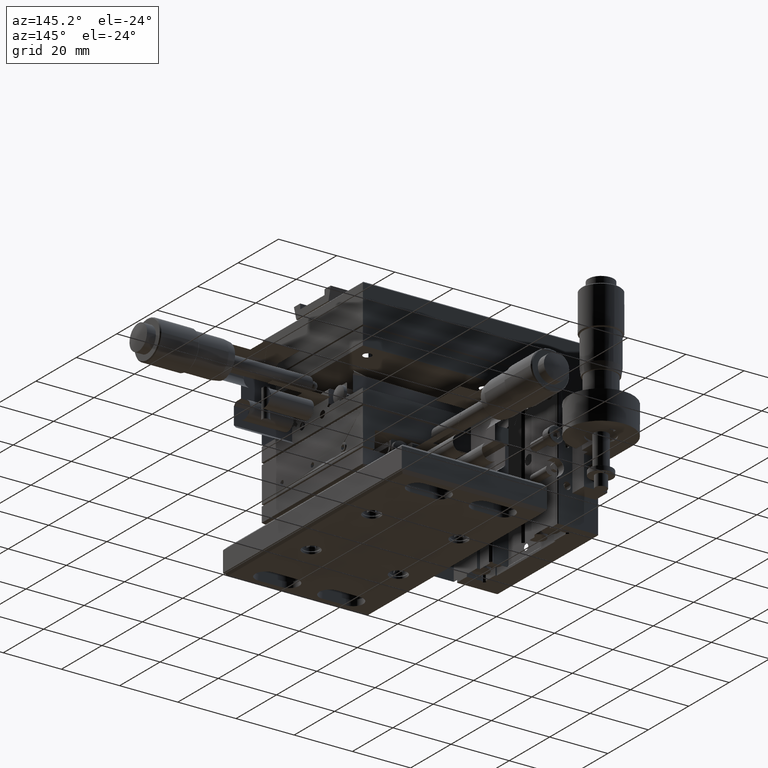
[diagram: clean part render]
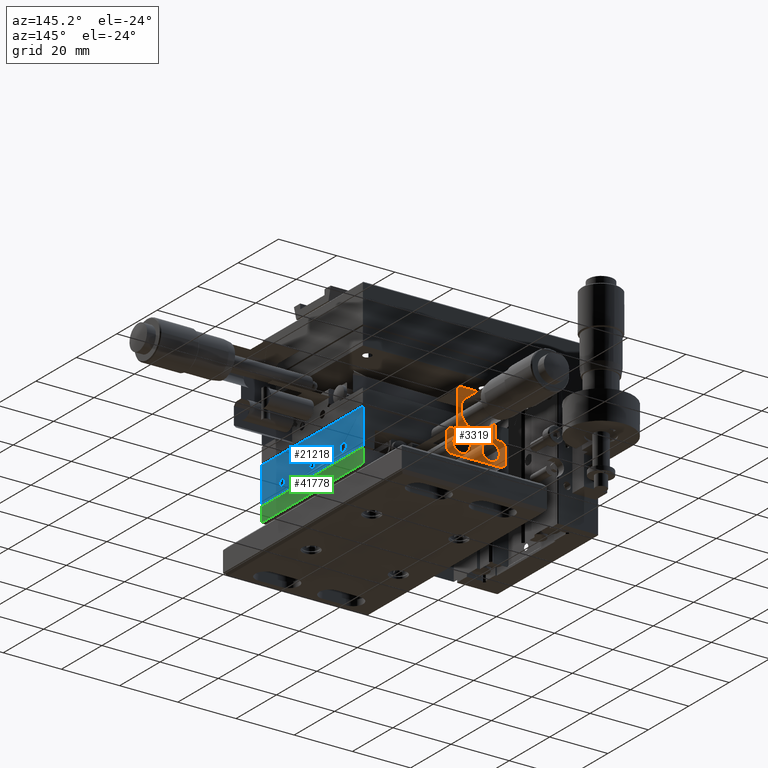
[diagram: same view with three faces highlighted in distinct colors, each labeled with its STEP entity id]
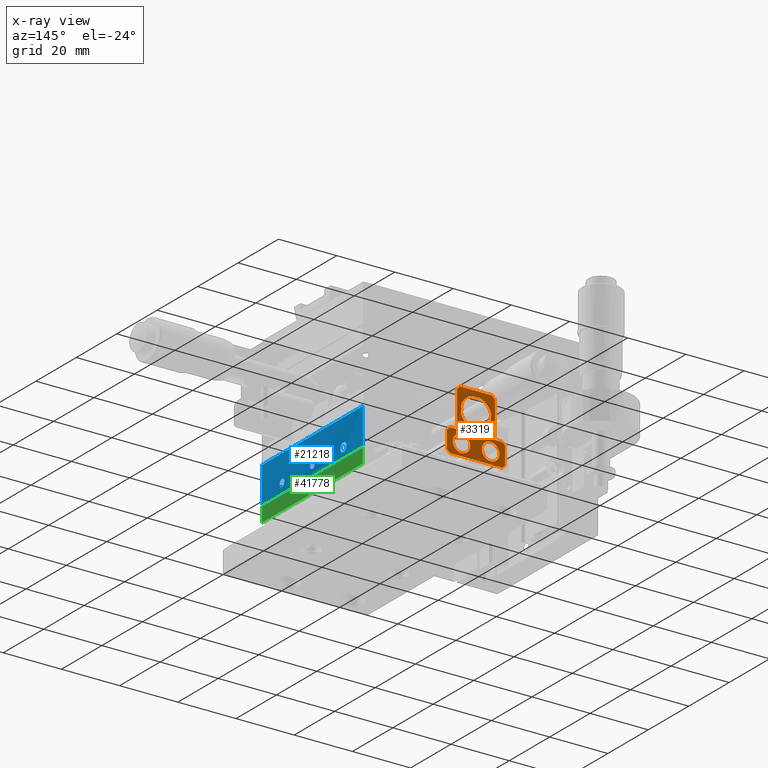
[diagram: x-ray of the same camera — body ghosted, the three highlighted faces saturated]
A machine part, auxiliary view with three faces highlighted in distinct colors.
The next image is the same camera in x-ray (body ghosted, the three faces saturated) — at least one of them is partly hidden behind the body in this view.
Their STEP definitions:

[orange] entity #3319 — the highlighted face is a freeform B-spline surface patch.
#440 = CARTESIAN_POINT ( 'NONE',  ( 12.41923232115949816, 42.50071742813409514, -8.921872138184399503 ) ) ;
#478 = CARTESIAN_POINT ( 'NONE',  ( 18.41923232115950171, 42.50071742813410225, -2.921872138184409273 ) ) ;
#1362 = CARTESIAN_POINT ( 'NONE',  ( 16.91923232115950171, 42.50071742813409514, -4.921872138184400391 ) ) ;
#1472 = FACE_BOUND ( 'NONE', #34066, .T. ) ;
#1560 = CARTESIAN_POINT ( 'NONE',  ( 2.419232321159501709, 42.50071742813410225, -14.92187213818438174 ) ) ;
#1932 = B_SPLINE_CURVE_WITH_KNOTS ( 'NONE', 1,
 ( #9555, #23852 ),
 .UNSPECIFIED., .F., .F.,
 ( 2, 2 ),
 ( 0.000000000000000000, 1.000000000000000000 ),
 .UNSPECIFIED. ) ;
#2353 =( BOUNDED_CURVE ( )  B_SPLINE_CURVE ( 3, ( #34078, #2457, #44663, #41150 ),
 .UNSPECIFIED., .F., .F. ) 
 B_SPLINE_CURVE_WITH_KNOTS ( ( 4, 4 ),
 ( 0.000000000000000000, 1.000000000000000000 ),
 .UNSPECIFIED. ) 
 CURVE ( )  GEOMETRIC_REPRESENTATION_ITEM ( )  RATIONAL_B_SPLINE_CURVE ( ( 1.000000000000000000, 0.3333333333333329818, 0.3333333333333329818, 1.000000000000000000 ) ) 
 REPRESENTATION_ITEM ( '' )  );
#2457 = CARTESIAN_POINT ( 'NONE',  ( 12.41923232115949460, 42.50071742813410225, -14.92187213818438174 ) ) ;
#2835 = CARTESIAN_POINT ( 'NONE',  ( 20.41923232115950171, 42.50071742813409514, -11.92187213818439950 ) ) ;
#3162 = ORIENTED_EDGE ( 'NONE', *, *, #28629, .F. ) ;
#3171 = VERTEX_POINT ( 'NONE', #32158 ) ;
#3319 = ADVANCED_FACE ( 'NONE', ( #1472, #26529, #19751, #41544 ), #6357, .T. ) ;
#3889 = B_SPLINE_CURVE_WITH_KNOTS ( 'NONE', 1,
 ( #2835, #20631 ),
 .UNSPECIFIED., .F., .F.,
 ( 2, 2 ),
 ( 0.000000000000000000, 1.000000000000000000 ),
 .UNSPECIFIED. ) ;
#4510 = EDGE_LOOP ( 'NONE', ( #6305, #7260 ) ) ;
#4530 =( BOUNDED_CURVE ( )  B_SPLINE_CURVE ( 3, ( #41106, #6397, #23273, #15998 ),
 .UNSPECIFIED., .F., .F. ) 
 B_SPLINE_CURVE_WITH_KNOTS ( ( 4, 4 ),
 ( 0.5000000000000000000, 1.000000000000000000 ),
 .UNSPECIFIED. ) 
 CURVE ( )  GEOMETRIC_REPRESENTATION_ITEM ( )  RATIONAL_B_SPLINE_CURVE ( ( 0.4999999999999996114, 0.4999999999999996669, 0.6666666666666665186, 1.000000000000000000 ) ) 
 REPRESENTATION_ITEM ( '' )  );
#4585 = B_SPLINE_CURVE_WITH_KNOTS ( 'NONE', 1,
 ( #18860, #15316 ),
 .UNSPECIFIED., .F., .F.,
 ( 2, 2 ),
 ( -1.000000000000000000, 0.000000000000000000 ),
 .UNSPECIFIED. ) ;
#4631 = VERTEX_POINT ( 'NONE', #12652 ) ;
#4928 =( BOUNDED_CURVE ( )  B_SPLINE_CURVE ( 3, ( #41511, #41047, #40573, #9151 ),
 .UNSPECIFIED., .F., .F. ) 
 B_SPLINE_CURVE_WITH_KNOTS ( ( 4, 4 ),
 ( 0.000000000000000000, 0.5000000000000000000 ),
 .UNSPECIFIED. ) 
 CURVE ( )  GEOMETRIC_REPRESENTATION_ITEM ( )  RATIONAL_B_SPLINE_CURVE ( ( 1.000000000000000000, 0.6666666666666665186, 0.4999999999999997780, 0.4999999999999997780 ) ) 
 REPRESENTATION_ITEM ( '' )  );
#5197 = VERTEX_POINT ( 'NONE', #8285 ) ;
#5520 = CARTESIAN_POINT ( 'NONE',  ( 13.91923232115949460, 42.50071742813409514, -3.671872138184394174 ) ) ;
#5757 = CARTESIAN_POINT ( 'NONE',  ( 15.66923232115949993, 42.50071742813409514, 1.578127861815599831 ) ) ;
#6305 = ORIENTED_EDGE ( 'NONE', *, *, #19005, .F. ) ;
#6357 = B_SPLINE_SURFACE_WITH_KNOTS ( 'NONE', 1, 1, ( 
 ( #8724, #16669 ),
 ( #45760, #9416 ) ),
 .UNSPECIFIED., .F., .F., .F.,
 ( 2, 2 ),
 ( 2, 2 ),
 ( 0.000000000000000000, 1.000000000000000000 ),
 ( 0.000000000000000000, 1.000000000000000000 ),
 .UNSPECIFIED. ) ;
#6397 = CARTESIAN_POINT ( 'NONE',  ( 6.919232321159488386, 42.50071742813410225, 6.828127861815595168 ) ) ;
#6492 = EDGE_CURVE ( 'NONE', #27611, #33409, #15196, .T. ) ;
#6707 =( BOUNDED_CURVE ( )  B_SPLINE_CURVE ( 3, ( #46130, #6956, #26105, #24988 ),
 .UNSPECIFIED., .F., .F. ) 
 B_SPLINE_CURVE_WITH_KNOTS ( ( 4, 4 ),
 ( 0.000000000000000000, 1.000000000000000000 ),
 .UNSPECIFIED. ) 
 CURVE ( )  GEOMETRIC_REPRESENTATION_ITEM ( )  RATIONAL_B_SPLINE_CURVE ( ( 1.000000000000000000, 0.3333333333333329818, 0.3333333333333329818, 1.000000000000000000 ) ) 
 REPRESENTATION_ITEM ( '' )  );
#6749 = EDGE_CURVE ( 'NONE', #3171, #8601, #15194, .T. ) ;
#6815 = CARTESIAN_POINT ( 'NONE',  ( 19.41923232115949816, 42.50071742813409514, -4.921872138184400391 ) ) ;
#6956 = CARTESIAN_POINT ( 'NONE',  ( 8.419232321159483945, 42.50071742813410225, -2.921872138184409273 ) ) ;
#7260 = ORIENTED_EDGE ( 'NONE', *, *, #31943, .F. ) ;
#8197 = CARTESIAN_POINT ( 'NONE',  ( 18.41923232115949816, 42.50071742813409514, -8.921872138184399503 ) ) ;
#8202 = EDGE_CURVE ( 'NONE', #45380, #24694, #2353, .T. ) ;
#8253 = ORIENTED_EDGE ( 'NONE', *, *, #19070, .F. ) ;
#8285 = CARTESIAN_POINT ( 'NONE',  ( 2.419232321159499932, 42.50071742813409514, -8.921872138184399503 ) ) ;
#8355 = VERTEX_POINT ( 'NONE', #29101 ) ;
#8601 = VERTEX_POINT ( 'NONE', #33943 ) ;
#8724 = CARTESIAN_POINT ( 'NONE',  ( 0.4192323211594859433, 42.50071742813409514, 8.578127861815598720 ) ) ;
#9051 = VERTEX_POINT ( 'NONE', #32198 ) ;
#9151 = CARTESIAN_POINT ( 'NONE',  ( 10.41923232115949105, 42.50071742813409514, -3.671872138184394174 ) ) ;
#9416 = CARTESIAN_POINT ( 'NONE',  ( 20.41923232115950171, 42.50071742813409514, -12.92187213818439950 ) ) ;
#9555 = CARTESIAN_POINT ( 'NONE',  ( 19.41923232115949816, 42.50071742813409514, -12.92187213818439950 ) ) ;
#9805 = CARTESIAN_POINT ( 'NONE',  ( 15.91923232115949993, 42.50071742813409514, 8.578127861815598720 ) ) ;
#9920 = ORIENTED_EDGE ( 'NONE', *, *, #8202, .F. ) ;
#9953 = ORIENTED_EDGE ( 'NONE', *, *, #44209, .F. ) ;
#10357 = EDGE_LOOP ( 'NONE', ( #28007, #41288, #27773, #21371, #40708, #9953, #43786, #19994, #43489, #3162, #8253, #35149, #12552, #22231 ) ) ;
#10908 = EDGE_CURVE ( 'NONE', #25865, #11543, #24062, .T. ) ;
#11543 = VERTEX_POINT ( 'NONE', #12971 ) ;
#11839 = EDGE_CURVE ( 'NONE', #33409, #9051, #3889, .T. ) ;
#12552 = ORIENTED_EDGE ( 'NONE', *, *, #40452, .F. ) ;
#12652 = CARTESIAN_POINT ( 'NONE',  ( 15.91923232115949993, 42.50071742813409514, 8.578127861815598720 ) ) ;
#12971 = CARTESIAN_POINT ( 'NONE',  ( 0.4192323211594874977, 42.50071742813409514, -11.92187213818439950 ) ) ;
#13711 = EDGE_CURVE ( 'NONE', #21554, #24706, #42002, .T. ) ;
#13806 = CARTESIAN_POINT ( 'NONE',  ( 16.91923232115950171, 42.50071742813409514, -4.921872138184400391 ) ) ;
#13820 =( BOUNDED_CURVE ( )  B_SPLINE_CURVE ( 3, ( #8197, #478, #22478, #36775 ),
 .UNSPECIFIED., .F., .F. ) 
 B_SPLINE_CURVE_WITH_KNOTS ( ( 4, 4 ),
 ( 0.000000000000000000, 1.000000000000000000 ),
 .UNSPECIFIED. ) 
 CURVE ( )  GEOMETRIC_REPRESENTATION_ITEM ( )  RATIONAL_B_SPLINE_CURVE ( ( 1.000000000000000000, 0.3333333333333329818, 0.3333333333333329818, 1.000000000000000000 ) ) 
 REPRESENTATION_ITEM ( '' )  );
#13865 = VERTEX_POINT ( 'NONE', #32090 ) ;
#14149 = CARTESIAN_POINT ( 'NONE',  ( 1.419232321159500154, 42.50071742813409514, -12.92187213818439950 ) ) ;
#15194 =( BOUNDED_CURVE ( )  B_SPLINE_CURVE ( 3, ( #28132, #34927, #41994, #27447 ),
 .UNSPECIFIED., .F., .F. ) 
 B_SPLINE_CURVE_WITH_KNOTS ( ( 4, 4 ),
 ( 0.000000000000000000, 0.5000000000000000000 ),
 .UNSPECIFIED. ) 
 CURVE ( )  GEOMETRIC_REPRESENTATION_ITEM ( )  RATIONAL_B_SPLINE_CURVE ( ( 1.000000000000000000, 0.6666666666666664076, 0.4999999999999996114, 0.4999999999999996114 ) ) 
 REPRESENTATION_ITEM ( '' )  );
#15196 = B_SPLINE_CURVE_WITH_KNOTS ( 'NONE', 1,
 ( #32677, #18637 ),
 .UNSPECIFIED., .F., .F.,
 ( 2, 2 ),
 ( 0.000000000000000000, 1.000000000000000000 ),
 .UNSPECIFIED. ) ;
#15316 = CARTESIAN_POINT ( 'NONE',  ( 4.919232321159499932, 42.50071742813409514, 8.578127861815589839 ) ) ;
#15585 = VERTEX_POINT ( 'NONE', #42524 ) ;
#15998 = CARTESIAN_POINT ( 'NONE',  ( 5.169232321159490162, 42.50071742813409514, 1.578127861815599831 ) ) ;
#16019 = ORIENTED_EDGE ( 'NONE', *, *, #36879, .F. ) ;
#16669 = CARTESIAN_POINT ( 'NONE',  ( 20.41923232115950171, 42.50071742813409514, 8.578127861815598720 ) ) ;
#16948 = EDGE_CURVE ( 'NONE', #9051, #25865, #1932, .T. ) ;
#17694 = CARTESIAN_POINT ( 'NONE',  ( 1.419232321159490162, 42.50071742813409514, -4.921872138184410161 ) ) ;
#18164 = CARTESIAN_POINT ( 'NONE',  ( 3.919232321159490606, 42.50071742813409514, -4.921872138184410161 ) ) ;
#18231 = EDGE_CURVE ( 'NONE', #24694, #45380, #13820, .T. ) ;
#18637 = CARTESIAN_POINT ( 'NONE',  ( 20.41923232115950171, 42.50071742813409514, -11.92187213818439950 ) ) ;
#18860 = CARTESIAN_POINT ( 'NONE',  ( 3.919232321159485277, 42.50071742813409514, 7.578127861815579180 ) ) ;
#19005 = EDGE_CURVE ( 'NONE', #32010, #5197, #6707, .T. ) ;
#19070 = EDGE_CURVE ( 'NONE', #13865, #15585, #4585, .T. ) ;
#19142 = CARTESIAN_POINT ( 'NONE',  ( 8.419232321159487498, 42.50071742813409514, -8.921872138184399503 ) ) ;
#19751 = FACE_BOUND ( 'NONE', #20735, .T. ) ;
#19935 = CARTESIAN_POINT ( 'NONE',  ( 16.91923232115950171, 42.50071742813409514, 7.578127861815599609 ) ) ;
#19994 = ORIENTED_EDGE ( 'NONE', *, *, #38078, .F. ) ;
#20048 = CARTESIAN_POINT ( 'NONE',  ( 1.419232321159490162, 42.50071742813409514, -4.921872138184410161 ) ) ;
#20081 = EDGE_CURVE ( 'NONE', #28080, #42373, #20091, .T. ) ;
#20091 = B_SPLINE_CURVE_WITH_KNOTS ( 'NONE', 1,
 ( #38788, #31741 ),
 .UNSPECIFIED., .F., .F.,
 ( 2, 2 ),
 ( 0.000000000000000000, 1.000000000000000000 ),
 .UNSPECIFIED. ) ;
#20590 = CARTESIAN_POINT ( 'NONE',  ( 16.91923232115950171, 42.50071742813409514, 7.578127861815599609 ) ) ;
#20631 = CARTESIAN_POINT ( 'NONE',  ( 19.41923232115949816, 42.50071742813409514, -12.92187213818439950 ) ) ;
#20735 = EDGE_LOOP ( 'NONE', ( #32928, #9920 ) ) ;
#21371 = ORIENTED_EDGE ( 'NONE', *, *, #11839, .F. ) ;
#21511 = B_SPLINE_CURVE_WITH_KNOTS ( 'NONE', 1,
 ( #26840, #45371 ),
 .UNSPECIFIED., .F., .F.,
 ( 2, 2 ),
 ( -1.000000000000000000, 0.000000000000000000 ),
 .UNSPECIFIED. ) ;
#21554 = VERTEX_POINT ( 'NONE', #1362 ) ;
#22231 = ORIENTED_EDGE ( 'NONE', *, *, #20081, .F. ) ;
#22478 = CARTESIAN_POINT ( 'NONE',  ( 12.41923232115949460, 42.50071742813410225, -2.921872138184409273 ) ) ;
#22545 = EDGE_CURVE ( 'NONE', #40955, #13865, #21511, .T. ) ;
#23013 = CARTESIAN_POINT ( 'NONE',  ( 19.41923232115949816, 42.50071742813409514, -4.921872138184400391 ) ) ;
#23111 =( BOUNDED_CURVE ( )  B_SPLINE_CURVE ( 3, ( #38089, #5520, #37150, #5757 ),
 .UNSPECIFIED., .F., .F. ) 
 B_SPLINE_CURVE_WITH_KNOTS ( ( 4, 4 ),
 ( 0.5000000000000000000, 1.000000000000000000 ),
 .UNSPECIFIED. ) 
 CURVE ( )  GEOMETRIC_REPRESENTATION_ITEM ( )  RATIONAL_B_SPLINE_CURVE ( ( 0.4999999999999997780, 0.4999999999999997780, 0.6666666666666665186, 1.000000000000000000 ) ) 
 REPRESENTATION_ITEM ( '' )  );
#23273 = CARTESIAN_POINT ( 'NONE',  ( 5.169232321159490162, 42.50071742813409514, 4.203127861815596056 ) ) ;
#23852 = CARTESIAN_POINT ( 'NONE',  ( 1.419232321159500154, 42.50071742813409514, -12.92187213818439950 ) ) ;
#24062 = B_SPLINE_CURVE_WITH_KNOTS ( 'NONE', 1,
 ( #43409, #29085 ),
 .UNSPECIFIED., .F., .F.,
 ( 2, 2 ),
 ( 0.000000000000000000, 1.000000000000000000 ),
 .UNSPECIFIED. ) ;
#24374 = VERTEX_POINT ( 'NONE', #42986 ) ;
#24694 = VERTEX_POINT ( 'NONE', #42471 ) ;
#24706 = VERTEX_POINT ( 'NONE', #35637 ) ;
#24988 = CARTESIAN_POINT ( 'NONE',  ( 2.419232321159499932, 42.50071742813409514, -8.921872138184399503 ) ) ;
#25865 = VERTEX_POINT ( 'NONE', #14149 ) ;
#26105 = CARTESIAN_POINT ( 'NONE',  ( 2.419232321159501709, 42.50071742813410225, -2.921872138184409273 ) ) ;
#26204 = CARTESIAN_POINT ( 'NONE',  ( 0.4192323211594894961, 42.50071742813409514, -5.921872138184410161 ) ) ;
#26529 = FACE_BOUND ( 'NONE', #4510, .T. ) ;
#26840 = CARTESIAN_POINT ( 'NONE',  ( 3.919232321159490606, 42.50071742813409514, -4.921872138184410161 ) ) ;
#26851 = CARTESIAN_POINT ( 'NONE',  ( 2.419232321159499932, 42.50071742813409514, -8.921872138184399503 ) ) ;
#26896 = B_SPLINE_CURVE_WITH_KNOTS ( 'NONE', 1,
 ( #9805, #20590 ),
 .UNSPECIFIED., .F., .F.,
 ( 2, 2 ),
 ( -1.000000000000000000, 0.000000000000000000 ),
 .UNSPECIFIED. ) ;
#27447 = CARTESIAN_POINT ( 'NONE',  ( 10.41923232115949105, 42.50071742813410225, 6.828127861815596944 ) ) ;
#27611 = VERTEX_POINT ( 'NONE', #36605 ) ;
#27773 = ORIENTED_EDGE ( 'NONE', *, *, #16948, .F. ) ;
#28007 = ORIENTED_EDGE ( 'NONE', *, *, #30828, .F. ) ;
#28080 = VERTEX_POINT ( 'NONE', #45447 ) ;
#28132 = CARTESIAN_POINT ( 'NONE',  ( 15.66923232115949993, 42.50071742813409514, 1.578127861815599831 ) ) ;
#28629 = EDGE_CURVE ( 'NONE', #15585, #4631, #33740, .T. ) ;
#29085 = CARTESIAN_POINT ( 'NONE',  ( 0.4192323211594874977, 42.50071742813409514, -11.92187213818439950 ) ) ;
#29101 = CARTESIAN_POINT ( 'NONE',  ( 10.41923232115949816, 42.50071742813409514, -3.421872138184395062 ) ) ;
#29185 = CARTESIAN_POINT ( 'NONE',  ( 16.91923232115950171, 42.50071742813409514, 7.578127861815599609 ) ) ;
#29455 = ORIENTED_EDGE ( 'NONE', *, *, #6749, .F. ) ;
#29630 = CARTESIAN_POINT ( 'NONE',  ( 15.91923232115949993, 42.50071742813409514, 8.578127861815598720 ) ) ;
#29715 = CARTESIAN_POINT ( 'NONE',  ( 0.4192323211594874977, 42.50071742813409514, -11.92187213818439950 ) ) ;
#30353 = CARTESIAN_POINT ( 'NONE',  ( 8.419232321159483945, 42.50071742813410225, -14.92187213818438174 ) ) ;
#30828 = EDGE_CURVE ( 'NONE', #11543, #28080, #42478, .T. ) ;
#31486 = EDGE_CURVE ( 'NONE', #8601, #24374, #4530, .T. ) ;
#31741 = CARTESIAN_POINT ( 'NONE',  ( 1.419232321159490162, 42.50071742813409514, -4.921872138184410161 ) ) ;
#31943 = EDGE_CURVE ( 'NONE', #5197, #32010, #41073, .T. ) ;
#32010 = VERTEX_POINT ( 'NONE', #42083 ) ;
#32090 = CARTESIAN_POINT ( 'NONE',  ( 3.919232321159485277, 42.50071742813409514, 7.578127861815579180 ) ) ;
#32158 = CARTESIAN_POINT ( 'NONE',  ( 15.41923232431030044, 42.50071742813409514, 1.578155239988054959 ) ) ;
#32198 = CARTESIAN_POINT ( 'NONE',  ( 19.41923232115949816, 42.50071742813409514, -12.92187213818439950 ) ) ;
#32478 = B_SPLINE_CURVE_WITH_KNOTS ( 'NONE', 1,
 ( #23013, #41078 ),
 .UNSPECIFIED., .F., .F.,
 ( 2, 2 ),
 ( 0.000000000000000000, 1.000000000000000000 ),
 .UNSPECIFIED. ) ;
#32677 = CARTESIAN_POINT ( 'NONE',  ( 20.41923232115950171, 42.50071742813409514, -5.921872138184389733 ) ) ;
#32840 = ORIENTED_EDGE ( 'NONE', *, *, #31486, .F. ) ;
#32928 = ORIENTED_EDGE ( 'NONE', *, *, #18231, .F. ) ;
#33409 = VERTEX_POINT ( 'NONE', #46323 ) ;
#33607 = CARTESIAN_POINT ( 'NONE',  ( 4.919232321159499932, 42.50071742813409514, 8.578127861815589839 ) ) ;
#33740 = B_SPLINE_CURVE_WITH_KNOTS ( 'NONE', 1,
 ( #33607, #29630 ),
 .UNSPECIFIED., .F., .F.,
 ( 2, 2 ),
 ( -1.000000000000000000, 0.000000000000000000 ),
 .UNSPECIFIED. ) ;
#33943 = CARTESIAN_POINT ( 'NONE',  ( 10.41923232115949816, 42.50071742813409514, 6.578127861815599609 ) ) ;
#34066 = EDGE_LOOP ( 'NONE', ( #43263, #16019, #32840, #29455 ) ) ;
#34078 = CARTESIAN_POINT ( 'NONE',  ( 12.41923232115949816, 42.50071742813409514, -8.921872138184399503 ) ) ;
#34548 = B_SPLINE_CURVE_WITH_KNOTS ( 'NONE', 1,
 ( #17694, #18164 ),
 .UNSPECIFIED., .F., .F.,
 ( 2, 2 ),
 ( 0.000000000000000000, 1.000000000000000000 ),
 .UNSPECIFIED. ) ;
#34927 = CARTESIAN_POINT ( 'NONE',  ( 15.66923232115949638, 42.50071742813409514, 4.203127861815597832 ) ) ;
#35149 = ORIENTED_EDGE ( 'NONE', *, *, #22545, .F. ) ;
#35277 = VERTEX_POINT ( 'NONE', #29185 ) ;
#35444 = EDGE_CURVE ( 'NONE', #8355, #3171, #23111, .T. ) ;
#35637 = CARTESIAN_POINT ( 'NONE',  ( 19.41923232115949816, 42.50071742813409514, -4.921872138184400391 ) ) ;
#36273 = CARTESIAN_POINT ( 'NONE',  ( 3.919232321159490606, 42.50071742813409514, -4.921872138184410161 ) ) ;
#36605 = CARTESIAN_POINT ( 'NONE',  ( 20.41923232115950171, 42.50071742813409514, -5.921872138184389733 ) ) ;
#36775 = CARTESIAN_POINT ( 'NONE',  ( 12.41923232115949816, 42.50071742813409514, -8.921872138184399503 ) ) ;
#36879 = EDGE_CURVE ( 'NONE', #24374, #8355, #4928, .T. ) ;
#37150 = CARTESIAN_POINT ( 'NONE',  ( 15.66923232115949638, 42.50071742813410225, -1.046872138184396617 ) ) ;
#38078 = EDGE_CURVE ( 'NONE', #35277, #21554, #43748, .T. ) ;
#38089 = CARTESIAN_POINT ( 'NONE',  ( 10.41923232115949105, 42.50071742813409514, -3.671872138184394174 ) ) ;
#38454 = CARTESIAN_POINT ( 'NONE',  ( 16.91923232115950171, 42.50071742813409514, -4.921872138184400391 ) ) ;
#38788 = CARTESIAN_POINT ( 'NONE',  ( 0.4192323211594894961, 42.50071742813409514, -5.921872138184410161 ) ) ;
#40452 = EDGE_CURVE ( 'NONE', #42373, #40955, #34548, .T. ) ;
#40573 = CARTESIAN_POINT ( 'NONE',  ( 6.919232321159488386, 42.50071742813409514, -3.671872138184394174 ) ) ;
#40708 = ORIENTED_EDGE ( 'NONE', *, *, #6492, .F. ) ;
#40955 = VERTEX_POINT ( 'NONE', #36273 ) ;
#41047 = CARTESIAN_POINT ( 'NONE',  ( 5.169232321159491050, 42.50071742813410225, -1.046872138184396617 ) ) ;
#41073 =( BOUNDED_CURVE ( )  B_SPLINE_CURVE ( 3, ( #26851, #1560, #30353, #19142 ),
 .UNSPECIFIED., .F., .F. ) 
 B_SPLINE_CURVE_WITH_KNOTS ( ( 4, 4 ),
 ( 0.000000000000000000, 1.000000000000000000 ),
 .UNSPECIFIED. ) 
 CURVE ( )  GEOMETRIC_REPRESENTATION_ITEM ( )  RATIONAL_B_SPLINE_CURVE ( ( 1.000000000000000000, 0.3333333333333329818, 0.3333333333333329818, 1.000000000000000000 ) ) 
 REPRESENTATION_ITEM ( '' )  );
#41078 = CARTESIAN_POINT ( 'NONE',  ( 20.41923232115950171, 42.50071742813409514, -5.921872138184389733 ) ) ;
#41106 = CARTESIAN_POINT ( 'NONE',  ( 10.41923232115949105, 42.50071742813410225, 6.828127861815596944 ) ) ;
#41150 = CARTESIAN_POINT ( 'NONE',  ( 18.41923232115949816, 42.50071742813409514, -8.921872138184399503 ) ) ;
#41288 = ORIENTED_EDGE ( 'NONE', *, *, #10908, .F. ) ;
#41511 = CARTESIAN_POINT ( 'NONE',  ( 5.169232321159490162, 42.50071742813409514, 1.578127861815599831 ) ) ;
#41544 = FACE_OUTER_BOUND ( 'NONE', #10357, .T. ) ;
#41994 = CARTESIAN_POINT ( 'NONE',  ( 13.91923232115949638, 42.50071742813410225, 6.828127861815596944 ) ) ;
#42002 = B_SPLINE_CURVE_WITH_KNOTS ( 'NONE', 1,
 ( #38454, #6815 ),
 .UNSPECIFIED., .F., .F.,
 ( 2, 2 ),
 ( 0.000000000000000000, 1.000000000000000000 ),
 .UNSPECIFIED. ) ;
#42083 = CARTESIAN_POINT ( 'NONE',  ( 8.419232321159487498, 42.50071742813409514, -8.921872138184399503 ) ) ;
#42373 = VERTEX_POINT ( 'NONE', #20048 ) ;
#42471 = CARTESIAN_POINT ( 'NONE',  ( 18.41923232115949816, 42.50071742813409514, -8.921872138184399503 ) ) ;
#42478 = B_SPLINE_CURVE_WITH_KNOTS ( 'NONE', 1,
 ( #29715, #26204 ),
 .UNSPECIFIED., .F., .F.,
 ( 2, 2 ),
 ( 0.000000000000000000, 1.000000000000000000 ),
 .UNSPECIFIED. ) ;
#42524 = CARTESIAN_POINT ( 'NONE',  ( 4.919232321159499932, 42.50071742813409514, 8.578127861815589839 ) ) ;
#42986 = CARTESIAN_POINT ( 'NONE',  ( 5.419232318008679883, 42.50071742813409514, 1.578100483637455032 ) ) ;
#43263 = ORIENTED_EDGE ( 'NONE', *, *, #35444, .F. ) ;
#43409 = CARTESIAN_POINT ( 'NONE',  ( 1.419232321159500154, 42.50071742813409514, -12.92187213818439950 ) ) ;
#43489 = ORIENTED_EDGE ( 'NONE', *, *, #43684, .F. ) ;
#43684 = EDGE_CURVE ( 'NONE', #4631, #35277, #26896, .T. ) ;
#43748 = B_SPLINE_CURVE_WITH_KNOTS ( 'NONE', 1,
 ( #19935, #13806 ),
 .UNSPECIFIED., .F., .F.,
 ( 2, 2 ),
 ( 0.000000000000000000, 1.000000000000000000 ),
 .UNSPECIFIED. ) ;
#43786 = ORIENTED_EDGE ( 'NONE', *, *, #13711, .F. ) ;
#44209 = EDGE_CURVE ( 'NONE', #24706, #27611, #32478, .T. ) ;
#44663 = CARTESIAN_POINT ( 'NONE',  ( 18.41923232115950171, 42.50071742813410225, -14.92187213818438174 ) ) ;
#45371 = CARTESIAN_POINT ( 'NONE',  ( 3.919232321159485277, 42.50071742813409514, 7.578127861815579180 ) ) ;
#45380 = VERTEX_POINT ( 'NONE', #440 ) ;
#45447 = CARTESIAN_POINT ( 'NONE',  ( 0.4192323211594894961, 42.50071742813409514, -5.921872138184410161 ) ) ;
#45760 = CARTESIAN_POINT ( 'NONE',  ( 0.4192323211594859433, 42.50071742813409514, -12.92187213818439950 ) ) ;
#46130 = CARTESIAN_POINT ( 'NONE',  ( 8.419232321159487498, 42.50071742813409514, -8.921872138184399503 ) ) ;
#46323 = CARTESIAN_POINT ( 'NONE',  ( 20.41923232115950171, 42.50071742813409514, -11.92187213818439950 ) ) ;

[blue] entity #21218 — the highlighted face is a freeform B-spline surface patch.
#53 = CARTESIAN_POINT ( 'NONE',  ( 35.41923232115939868, -2.499249755662264594, -5.461622138184400121 ) ) ;
#72 = CARTESIAN_POINT ( 'NONE',  ( 35.41923232115940579, -3.085584045235376660, -5.304214240981890427 ) ) ;
#137 = EDGE_LOOP ( 'NONE', ( #29615, #28054 ) ) ;
#617 = EDGE_CURVE ( 'NONE', #40695, #33841, #39958, .T. ) ;
#988 = CARTESIAN_POINT ( 'NONE',  ( 35.41923232115939868, -2.499249755662264594, -5.461622138184400121 ) ) ;
#1211 = CARTESIAN_POINT ( 'NONE',  ( 35.41923232115940579, -1.509499829773171209, -3.472732424093927683 ) ) ;
#1353 = CARTESIAN_POINT ( 'NONE',  ( 35.41923232115939868, -17.49923892575510109, -5.461696812016629821 ) ) ;
#1415 = B_SPLINE_SURFACE_WITH_KNOTS ( 'NONE', 1, 1, ( 
 ( #7572, #31704 ),
 ( #35454, #21393 ) ),
 .UNSPECIFIED., .F., .F., .F.,
 ( 2, 2 ),
 ( 2, 2 ),
 ( 0.000000000000000000, 1.000000000000000000 ),
 ( 0.000000000000000000, 1.000000000000000000 ),
 .UNSPECIFIED. ) ;
#1556 = ORIENTED_EDGE ( 'NONE', *, *, #43383, .F. ) ;
#1916 = CARTESIAN_POINT ( 'NONE',  ( 35.41923232115939868, -18.35956771870659665, -5.105273462141319385 ) ) ;
#1976 = CARTESIAN_POINT ( 'NONE',  ( 35.41923232115939157, -3.508077973397833116, -3.509903139563671282 ) ) ;
#2051 = CARTESIAN_POINT ( 'NONE',  ( 35.41923232115940579, -17.25533817754332233, -5.427498177761090226 ) ) ;
#2098 = VERTEX_POINT ( 'NONE', #53 ) ;
#2152 = CARTESIAN_POINT ( 'NONE',  ( 35.41923232115939868, -18.72848451978234863, -4.056376725116704662 ) ) ;
#2278 = B_SPLINE_CURVE_WITH_KNOTS ( 'NONE', 3,
 ( #1353, #44237, #34133, #2051, #37193, #5105, #19402, #16323, #30615, #40264, #44714, #15861, #30158, #26647, #41202, #5336, #22434 ),
 .UNSPECIFIED., .F., .F.,
 ( 4, 2, 2, 1, 2, 2, 2, 2, 4 ),
 ( 0.5442450546873158768, 0.6012144228513993660, 0.6296991069334423319, 0.6581837910154854088, 0.7151531591795712295, 0.7721225273436571612, 0.8290918955077429819, 0.8860612636718288027, 1.000000000000000000 ),
 .UNSPECIFIED. ) ;
#2413 = EDGE_LOOP ( 'NONE', ( #9811, #11813, #8356, #1556 ) ) ;
#2441 = CARTESIAN_POINT ( 'NONE',  ( 35.41923232115939868, -2.915439890476436258, -3.064759485574216846 ) ) ;
#2530 = CARTESIAN_POINT ( 'NONE',  ( 35.41923232115939868, -16.27001499154225073, -4.387367551252130404 ) ) ;
#2537 = VERTEX_POINT ( 'NONE', #4410 ) ;
#2670 = CARTESIAN_POINT ( 'NONE',  ( 35.41923232115939868, -3.728822612769313150, -4.065147394859412344 ) ) ;
#2904 = CARTESIAN_POINT ( 'NONE',  ( 35.41923232115940579, -3.308456473916431495, -5.151383962345643219 ) ) ;
#3060 = B_SPLINE_CURVE_WITH_KNOTS ( 'NONE', 3,
 ( #13867, #42485, #6618, #14098, #27935, #30977, #16920, #38716, #31210, #45545, #17608, #27709, #20892, #9893, #28384, #35188, #28157 ),
 .UNSPECIFIED., .F., .F.,
 ( 4, 2, 2, 1, 2, 2, 2, 2, 4 ),
 ( 0.5442450546920647447, 0.6012144228555563741, 0.6296991069373022443, 0.6581837910190481145, 0.7151531591825398548, 0.7721225273460317062, 0.8290918955095235576, 0.8860612636730154090, 1.000000000000000000 ),
 .UNSPECIFIED. ) ;
#3212 = CARTESIAN_POINT ( 'NONE',  ( 35.41923232115939868, -17.49926058556924957, -2.982047464352345134 ) ) ;
#3332 = ORIENTED_EDGE ( 'NONE', *, *, #617, .T. ) ;
#3360 = CARTESIAN_POINT ( 'NONE',  ( 35.41923232115939868, -2.499249755662264594, -5.461622138184400121 ) ) ;
#3572 = CARTESIAN_POINT ( 'NONE',  ( 35.41923232115939157, -1.329578735750464036, -3.842253182723386562 ) ) ;
#4297 = CARTESIAN_POINT ( 'NONE',  ( 35.41923232115939868, -27.49928257186589775, 4.878127861815590549 ) ) ;
#4410 = CARTESIAN_POINT ( 'NONE',  ( 35.41923232115939868, -18.72848451978234863, -4.056376725116704662 ) ) ;
#4508 = CARTESIAN_POINT ( 'NONE',  ( 35.41923232115939157, -1.372097078507895862, -4.713533017841355033 ) ) ;
#5105 = CARTESIAN_POINT ( 'NONE',  ( 35.41923232115939868, -17.14745528788046158, -5.400608517889533999 ) ) ;
#5336 = CARTESIAN_POINT ( 'NONE',  ( 35.41923232115938447, -16.29976669325620620, -4.527110194036649382 ) ) ;
#6418 = CARTESIAN_POINT ( 'NONE',  ( 35.41923232115939868, -3.248389469781683747, -3.232122212326610011 ) ) ;
#6618 = CARTESIAN_POINT ( 'NONE',  ( 35.41923232115939157, -17.63916641523995921, -2.998144617920589727 ) ) ;
#6642 = CARTESIAN_POINT ( 'NONE',  ( 35.41923232115939868, -2.692794631386103088, -3.003162798664878341 ) ) ;
#6952 = ORIENTED_EDGE ( 'NONE', *, *, #33052, .F. ) ;
#7080 = CARTESIAN_POINT ( 'NONE',  ( 35.41923232115939157, -1.269676898554715327, -4.378596881511284344 ) ) ;
#7104 = FACE_BOUND ( 'NONE', #32942, .T. ) ;
#7284 = B_SPLINE_CURVE_WITH_KNOTS ( 'NONE', 1,
 ( #26275, #30241 ),
 .UNSPECIFIED., .F., .F.,
 ( 2, 2 ),
 ( 0.000000000000000000, 1.000000000000000000 ),
 .UNSPECIFIED. ) ;
#7309 = CARTESIAN_POINT ( 'NONE',  ( 35.41923232115939157, -1.750110041547910278, -5.211622064049269198 ) ) ;
#7572 = CARTESIAN_POINT ( 'NONE',  ( 35.41923232115939868, -27.49928257186589775, 4.878127861815590549 ) ) ;
#7971 = VERTEX_POINT ( 'NONE', #20094 ) ;
#8356 = ORIENTED_EDGE ( 'NONE', *, *, #10271, .T. ) ;
#8658 = ORIENTED_EDGE ( 'NONE', *, *, #45762, .F. ) ;
#8692 = ORIENTED_EDGE ( 'NONE', *, *, #12614, .F. ) ;
#9036 =( BOUNDED_CURVE ( )  B_SPLINE_CURVE ( 3, ( #23159, #37455, #30637, #29947 ),
 .UNSPECIFIED., .F., .F. ) 
 B_SPLINE_CURVE_WITH_KNOTS ( ( 4, 4 ),
 ( 0.000000000000000000, 1.000000000000000000 ),
 .UNSPECIFIED. ) 
 CURVE ( )  GEOMETRIC_REPRESENTATION_ITEM ( )  RATIONAL_B_SPLINE_CURVE ( ( 1.000000000000000000, 0.3333333333333329818, 0.3333333333333329818, 1.000000000000000000 ) ) 
 REPRESENTATION_ITEM ( '' )  );
#9168 = CARTESIAN_POINT ( 'NONE',  ( 35.41923232115941289, -18.02796283385348275, -5.332135815101824328 ) ) ;
#9228 = CARTESIAN_POINT ( 'NONE',  ( 35.41923232115939868, -2.878791167912591487, -3.052170381680336941 ) ) ;
#9634 = B_SPLINE_CURVE_WITH_KNOTS ( 'NONE', 1,
 ( #25306, #39846 ),
 .UNSPECIFIED., .F., .F.,
 ( 2, 2 ),
 ( 0.000000000000000000, 1.000000000000000000 ),
 .UNSPECIFIED. ) ;
#9637 = VERTEX_POINT ( 'NONE', #22426 ) ;
#9811 = ORIENTED_EDGE ( 'NONE', *, *, #38862, .F. ) ;
#9893 = CARTESIAN_POINT ( 'NONE',  ( 35.41923232115939157, -18.55879294305410809, -3.594196013360424935 ) ) ;
#9916 = CARTESIAN_POINT ( 'NONE',  ( 35.41923232115939868, -3.428761579805863935, -3.412665419910006825 ) ) ;
#9991 = CARTESIAN_POINT ( 'NONE',  ( 35.41923232115939868, -16.82957223504769928, -3.159555503247807096 ) ) ;
#10271 = EDGE_CURVE ( 'NONE', #9637, #18870, #33186, .T. ) ;
#10375 = CARTESIAN_POINT ( 'NONE',  ( 35.39275603792469838, -27.49928257186589775, -7.381329456108679743 ) ) ;
#10827 = VERTEX_POINT ( 'NONE', #38941 ) ;
#11078 = CARTESIAN_POINT ( 'NONE',  ( 35.41923232115939868, -27.49928257186589775, 4.878127861815590549 ) ) ;
#11285 = CARTESIAN_POINT ( 'NONE',  ( 35.41923232115939868, -1.298452343521667940, -4.528700711580006200 ) ) ;
#11813 = ORIENTED_EDGE ( 'NONE', *, *, #21302, .F. ) ;
#12437 = CARTESIAN_POINT ( 'NONE',  ( 35.14873232114722867, 12.50075024433770032, -2.721872138201452351 ) ) ;
#12614 = EDGE_CURVE ( 'NONE', #39716, #2098, #26193, .T. ) ;
#12688 = CARTESIAN_POINT ( 'NONE',  ( 35.41923232115939868, -18.14350077917902482, -5.270108233569286149 ) ) ;
#12753 = CARTESIAN_POINT ( 'NONE',  ( 35.41923232115939157, -3.717895345213169556, -4.415577844269524377 ) ) ;
#13068 = CARTESIAN_POINT ( 'NONE',  ( 35.41923232115939157, -17.05421521756434089, -3.025495956773954553 ) ) ;
#13215 = CARTESIAN_POINT ( 'NONE',  ( 35.41923232115939157, -3.581591858436587561, -3.635537848584723175 ) ) ;
#13433 = CARTESIAN_POINT ( 'NONE',  ( 35.41923232115939157, -2.932051383771161035, -3.070859833550049878 ) ) ;
#13508 = CARTESIAN_POINT ( 'NONE',  ( 35.41923232115940579, -16.43616363946720682, -3.536261764915832995 ) ) ;
#13867 = CARTESIAN_POINT ( 'NONE',  ( 35.41923232115939868, -17.49926058556924957, -2.982047464352345134 ) ) ;
#13942 =( BOUNDED_CURVE ( )  B_SPLINE_CURVE ( 3, ( #12437, #30240, #26728, #41052 ),
 .UNSPECIFIED., .F., .F. ) 
 B_SPLINE_CURVE_WITH_KNOTS ( ( 4, 4 ),
 ( 0.000000000000000000, 1.000000000000000000 ),
 .UNSPECIFIED. ) 
 CURVE ( )  GEOMETRIC_REPRESENTATION_ITEM ( )  RATIONAL_B_SPLINE_CURVE ( ( 1.000000000000000000, 0.3333333333333329818, 0.3333333333333329818, 1.000000000000000000 ) ) 
 REPRESENTATION_ITEM ( '' )  );
#14057 = CARTESIAN_POINT ( 'NONE',  ( 35.41923232115940579, -17.83298614932996884, -5.408406115441165340 ) ) ;
#14098 = CARTESIAN_POINT ( 'NONE',  ( 35.41923232115940579, -17.74316133378770388, -3.016246098610943172 ) ) ;
#14290 = CARTESIAN_POINT ( 'NONE',  ( 35.41923232115939868, -17.58300253405616331, -5.451432322182302670 ) ) ;
#14589 = FACE_OUTER_BOUND ( 'NONE', #2413, .T. ) ;
#15861 = CARTESIAN_POINT ( 'NONE',  ( 35.41923232115939868, -16.57504174910957673, -5.036753979256319624 ) ) ;
#16193 = CARTESIAN_POINT ( 'NONE',  ( 35.41923232115939868, -18.25895871893203193, -5.196436641171117365 ) ) ;
#16251 = CARTESIAN_POINT ( 'NONE',  ( 35.41923232115941289, -3.609021686134938012, -3.691993588756271816 ) ) ;
#16323 = CARTESIAN_POINT ( 'NONE',  ( 35.41923232115939868, -16.93512819468997677, -5.317302895241364347 ) ) ;
#16407 = CARTESIAN_POINT ( 'NONE',  ( 35.41923232115939868, -2.007588876011026979, -3.094719461024410645 ) ) ;
#16420 = CARTESIAN_POINT ( 'NONE',  ( 35.41923232115939868, -18.73182019460863756, -4.226032831511269627 ) ) ;
#16748 = EDGE_CURVE ( 'NONE', #44205, #10827, #9036, .T. ) ;
#16920 = CARTESIAN_POINT ( 'NONE',  ( 35.41923232115940579, -17.96076948170861343, -3.077574187510391468 ) ) ;
#16941 = CARTESIAN_POINT ( 'NONE',  ( 35.41923232115940579, -3.728713327108773345, -4.300234509846872832 ) ) ;
#17026 = CARTESIAN_POINT ( 'NONE',  ( 35.41923232115941289, -17.31231431087737960, -2.971872138184415313 ) ) ;
#17483 = CARTESIAN_POINT ( 'NONE',  ( 35.41923232115939868, -16.24634811790008371, -4.204670168873056113 ) ) ;
#17608 = CARTESIAN_POINT ( 'NONE',  ( 35.41923232115941289, -18.37150545336825758, -3.351721702587928231 ) ) ;
#17851 = CARTESIAN_POINT ( 'NONE',  ( 35.41923232115939157, -1.348237449289208412, -3.789070511812899333 ) ) ;
#18340 = CARTESIAN_POINT ( 'NONE',  ( 35.41923232115940579, -2.806261718827710361, -5.422597043569827413 ) ) ;
#18436 = ORIENTED_EDGE ( 'NONE', *, *, #38820, .F. ) ;
#18508 = EDGE_LOOP ( 'NONE', ( #8658, #3332, #26865, #6952 ) ) ;
#18804 = CARTESIAN_POINT ( 'NONE',  ( 35.41923232115939868, -1.312060988354293523, -3.897449598979307428 ) ) ;
#18870 = VERTEX_POINT ( 'NONE', #36529 ) ;
#19026 = CARTESIAN_POINT ( 'NONE',  ( 35.41923232115937736, -2.028482249976656604, -3.085891195681791377 ) ) ;
#19053 = CARTESIAN_POINT ( 'NONE',  ( 35.41923232115939868, 22.50071742813409870, 4.878127861815590549 ) ) ;
#19255 = CARTESIAN_POINT ( 'NONE',  ( 35.41923232115939868, -2.499249755662264594, -2.982122138184414961 ) ) ;
#19402 = CARTESIAN_POINT ( 'NONE',  ( 35.41923232115938447, -17.03773002962876149, -5.366170088857568743 ) ) ;
#19484 = CARTESIAN_POINT ( 'NONE',  ( 35.41923232115941289, -1.969371206247369610, -3.112100207699545873 ) ) ;
#19736 = CARTESIAN_POINT ( 'NONE',  ( 35.41923232115940579, -18.53408824796877497, -4.892241906526908934 ) ) ;
#20019 = CARTESIAN_POINT ( 'NONE',  ( 35.41923232115941289, -2.577520224261151238, -2.992372138184411501 ) ) ;
#20094 = CARTESIAN_POINT ( 'NONE',  ( 35.41923232115939868, 22.50071742813409870, 4.878127861815590549 ) ) ;
#20416 = CARTESIAN_POINT ( 'NONE',  ( 35.41923232115940579, -18.72911552715457262, -4.142129426703442086 ) ) ;
#20698 = CARTESIAN_POINT ( 'NONE',  ( 35.41923232115939868, -3.488999681560611688, -4.971011852268485853 ) ) ;
#20779 = CARTESIAN_POINT ( 'NONE',  ( 35.41923232115939868, -16.30793919993176644, -3.763481560074213750 ) ) ;
#20892 = CARTESIAN_POINT ( 'NONE',  ( 35.41923232115938447, -18.51645926776497220, -3.526783345109279377 ) ) ;
#21218 = ADVANCED_FACE ( 'NONE', ( #39204, #7104, #43446, #14589 ), #1415, .T. ) ;
#21302 = EDGE_CURVE ( 'NONE', #9637, #7971, #39495, .T. ) ;
#21368 = CARTESIAN_POINT ( 'NONE',  ( 35.41923232115939157, -1.280604166111879882, -4.028166432097604499 ) ) ;
#21393 = CARTESIAN_POINT ( 'NONE',  ( 35.41923232115939868, 22.50071742813409870, -7.421872138184400391 ) ) ;
#21597 = CARTESIAN_POINT ( 'NONE',  ( 35.41923232115939868, -1.490421537922332229, -4.933841136798957194 ) ) ;
#21613 = CARTESIAN_POINT ( 'NONE',  ( 35.41923232115938447, -3.029128305073323979, -5.331644068671961278 ) ) ;
#22297 = CARTESIAN_POINT ( 'NONE',  ( 35.41923232115940579, -1.888510771875991701, -5.302346146517465719 ) ) ;
#22426 = CARTESIAN_POINT ( 'NONE',  ( 35.41923232115939868, -27.49928257186589775, 4.878127861815590549 ) ) ;
#22434 = CARTESIAN_POINT ( 'NONE',  ( 35.41923232115939868, -16.27001499154225073, -4.387367551252130404 ) ) ;
#22761 = CARTESIAN_POINT ( 'NONE',  ( 35.41923232115940579, -1.787280757068952397, -3.213043920423551469 ) ) ;
#23159 = CARTESIAN_POINT ( 'NONE',  ( 35.14873232114722157, 12.50075024433770032, -5.721872138167352517 ) ) ;
#23232 = CARTESIAN_POINT ( 'NONE',  ( 35.41923232115940579, -18.65570661147508247, -4.649618478249439413 ) ) ;
#23521 = CARTESIAN_POINT ( 'NONE',  ( 35.41923232115939157, -3.109988739448187989, -3.141398129852987609 ) ) ;
#23609 = CARTESIAN_POINT ( 'NONE',  ( 35.41923232115939868, -16.61807619095351640, -3.331096893358002742 ) ) ;
#24124 = CARTESIAN_POINT ( 'NONE',  ( 35.39275603792469838, 22.50071742813409870, -7.381329456108679743 ) ) ;
#24209 = CARTESIAN_POINT ( 'NONE',  ( 35.41923232115939868, -3.579723750082600020, -4.832611135873375652 ) ) ;
#24664 = CARTESIAN_POINT ( 'NONE',  ( 35.41923232115939868, -3.211218754247568974, -5.230700355950855140 ) ) ;
#25306 = CARTESIAN_POINT ( 'NONE',  ( 35.39275603792469838, 22.50071742813409870, -7.381329456108679743 ) ) ;
#25587 = CARTESIAN_POINT ( 'NONE',  ( 35.41923232115940579, -2.420979287065472274, -5.451372138184408023 ) ) ;
#25712 = VERTEX_POINT ( 'NONE', #24124 ) ;
#26069 = CARTESIAN_POINT ( 'NONE',  ( 35.41923232115939868, -16.27001499154225073, -4.387367551252130404 ) ) ;
#26193 = B_SPLINE_CURVE_WITH_KNOTS ( 'NONE', 3,
 ( #41820, #20019, #6642, #34978, #9228, #2441, #13433, #23521, #6418, #9916, #1976, #13215, #16251, #30775, #27497, #42270, #2670, #16941, #12753, #37830, #45115, #27732, #42050, #24209, #20698, #2904, #24664, #72, #21613, #39196, #39434, #18340, #32146, #3360 ),
 .UNSPECIFIED., .F., .F.,
 ( 4, 1, 1, 2, 2, 2, 1, 1, 2, 2, 2, 1, 1, 2, 2, 2, 1, 1, 2, 2, 4 ),
 ( 0.000000000000000000, 0.06250000000000027756, 0.09375000000000044409, 0.1093750000000003608, 0.1250000000000002776, 0.2500000000000005551, 0.3125000000000005551, 0.3437500000000003886, 0.3593750000000004441, 0.3750000000000004441, 0.5000000000000000000, 0.5625000000000001110, 0.5937499999999998890, 0.6093750000000001110, 0.6250000000000004441, 0.7500000000000014433, 0.8125000000000018874, 0.8437500000000018874, 0.8593750000000014433, 0.8750000000000011102, 1.000000000000000000 ),
 .UNSPECIFIED. ) ;
#26275 = CARTESIAN_POINT ( 'NONE',  ( 35.41923232115939868, 22.50071742813409870, 4.878127861815590549 ) ) ;
#26647 = CARTESIAN_POINT ( 'NONE',  ( 35.41923232115939157, -16.43970656827331212, -4.849548263014339611 ) ) ;
#26728 = CARTESIAN_POINT ( 'NONE',  ( 35.14873232114722157, 9.500750244371822362, -5.721872138167358735 ) ) ;
#26729 = CARTESIAN_POINT ( 'NONE',  ( 35.41923232115939868, -2.192237792490410619, -3.021147232798989002 ) ) ;
#26756 = CARTESIAN_POINT ( 'NONE',  ( 35.28417382891505127, 12.50075024433770032, -5.589518127775120249 ) ) ;
#26865 = ORIENTED_EDGE ( 'NONE', *, *, #44751, .F. ) ;
#26974 = CARTESIAN_POINT ( 'NONE',  ( 35.41923232115941289, -18.08329698597277257, -5.304028765329764639 ) ) ;
#27058 = EDGE_CURVE ( 'NONE', #10827, #44205, #13942, .T. ) ;
#27497 = CARTESIAN_POINT ( 'NONE',  ( 35.41923232115939868, -3.635221634820556602, -3.751081708777554979 ) ) ;
#27709 = CARTESIAN_POINT ( 'NONE',  ( 35.41923232115939868, -18.42345776221961984, -3.406990297124263822 ) ) ;
#27732 = CARTESIAN_POINT ( 'NONE',  ( 35.41923232115939868, -3.656345332388028169, -4.638105352559600547 ) ) ;
#27935 = CARTESIAN_POINT ( 'NONE',  ( 35.41923232115939157, -17.77631106833382901, -3.023383197925656241 ) ) ;
#28054 = ORIENTED_EDGE ( 'NONE', *, *, #16748, .F. ) ;
#28122 = CARTESIAN_POINT ( 'NONE',  ( 35.41923232115939868, -17.93253862274301724, -5.376728747191418911 ) ) ;
#28157 = CARTESIAN_POINT ( 'NONE',  ( 35.41923232115939868, -18.72848451978234863, -4.056376725116704662 ) ) ;
#28263 = CARTESIAN_POINT ( 'NONE',  ( 35.41923232115939868, -16.68724493799136965, -3.266803140426889129 ) ) ;
#28347 = CARTESIAN_POINT ( 'NONE',  ( 35.41923232115940579, -17.66841801612175189, -5.442557982925747773 ) ) ;
#28384 = CARTESIAN_POINT ( 'NONE',  ( 35.41923232115940579, -18.65662048044002930, -3.783126434961599838 ) ) ;
#29093 = CARTESIAN_POINT ( 'NONE',  ( 35.41923232115939868, -1.416907652884679791, -4.808206427779449399 ) ) ;
#29325 = CARTESIAN_POINT ( 'NONE',  ( 35.41923232115939868, -2.066448127553456526, -5.372884442818564921 ) ) ;
#29615 = ORIENTED_EDGE ( 'NONE', *, *, #27058, .F. ) ;
#29947 = CARTESIAN_POINT ( 'NONE',  ( 35.14873232114722157, 12.50075024433770032, -2.721872138201458124 ) ) ;
#30158 = CARTESIAN_POINT ( 'NONE',  ( 35.41923232115939868, -16.48204024356273933, -4.916960931268929968 ) ) ;
#30240 = CARTESIAN_POINT ( 'NONE',  ( 35.14873232114722157, 9.500750244371808151, -2.721872138201451907 ) ) ;
#30241 = CARTESIAN_POINT ( 'NONE',  ( 35.39275603792469838, 22.50071742813409870, -7.381329456108679743 ) ) ;
#30615 = CARTESIAN_POINT ( 'NONE',  ( 35.41923232115940579, -16.80465767993860382, -5.239321068567090123 ) ) ;
#30637 = CARTESIAN_POINT ( 'NONE',  ( 35.14873232114722867, 15.50075024430365644, -2.721872138201459457 ) ) ;
#30775 = CARTESIAN_POINT ( 'NONE',  ( 35.41923232115940579, -3.626402432815492904, -3.730211258525799156 ) ) ;
#30977 = CARTESIAN_POINT ( 'NONE',  ( 35.41923232115939868, -17.85104422345876074, -3.043135758481209763 ) ) ;
#31094 = CARTESIAN_POINT ( 'NONE',  ( 35.41923232115938447, -16.24834904291035542, -4.299723494367383658 ) ) ;
#31210 = CARTESIAN_POINT ( 'NONE',  ( 35.41923232115939868, -18.19384183139520417, -3.204423207805061846 ) ) ;
#31704 = CARTESIAN_POINT ( 'NONE',  ( 35.41923232115939868, 22.50071742813409870, 4.878127861815590549 ) ) ;
#32130 = CARTESIAN_POINT ( 'NONE',  ( 35.41923232115939868, -1.418775761240523181, -3.611133140499667160 ) ) ;
#32146 = CARTESIAN_POINT ( 'NONE',  ( 35.41923232115940579, -2.655404237025594583, -5.451372138184409799 ) ) ;
#32602 = CARTESIAN_POINT ( 'NONE',  ( 35.41923232115939868, -2.119708343413726048, -5.391573894688482582 ) ) ;
#32942 = EDGE_LOOP ( 'NONE', ( #8692, #18436 ) ) ;
#33052 = EDGE_CURVE ( 'NONE', #2537, #39549, #37213, .T. ) ;
#33067 = CARTESIAN_POINT ( 'NONE',  ( 35.41923232115940579, -1.342154178936672881, -3.805638923808755347 ) ) ;
#33186 = B_SPLINE_CURVE_WITH_KNOTS ( 'NONE', 1,
 ( #11078, #10375 ),
 .UNSPECIFIED., .F., .F.,
 ( 2, 2 ),
 ( 0.000000000000000000, 1.000000000000000000 ),
 .UNSPECIFIED. ) ;
#33757 = CARTESIAN_POINT ( 'NONE',  ( 35.41923232115940579, -2.343095274292512631, -2.992372138184411501 ) ) ;
#33772 = CARTESIAN_POINT ( 'NONE',  ( 35.41923232115940579, -18.71988608024477330, -4.392779122633234223 ) ) ;
#33841 = VERTEX_POINT ( 'NONE', #26069 ) ;
#34004 = CARTESIAN_POINT ( 'NONE',  ( 35.41923232115939868, -18.48051399398070771, -4.968174479762351936 ) ) ;
#34133 = CARTESIAN_POINT ( 'NONE',  ( 35.41923232115939868, -17.35933309608107322, -5.445599658450499980 ) ) ;
#34978 = CARTESIAN_POINT ( 'NONE',  ( 35.41923232115939868, -2.823551672095153897, -3.034635558399576549 ) ) ;
#35150 = CARTESIAN_POINT ( 'NONE',  ( 35.41923232115939868, -17.49923892575510109, -5.461696812016629821 ) ) ;
#35188 = CARTESIAN_POINT ( 'NONE',  ( 35.41923232115939868, -18.69873281806728471, -3.916634082324251143 ) ) ;
#35454 = CARTESIAN_POINT ( 'NONE',  ( 35.41923232115939868, -27.49928257186589775, -7.421872138184400391 ) ) ;
#35888 = CARTESIAN_POINT ( 'NONE',  ( 35.41923232115940579, -1.389477825187509286, -4.751750687609560764 ) ) ;
#36127 = CARTESIAN_POINT ( 'NONE',  ( 35.41923232115940579, -2.305704879942085395, -5.440581477703942070 ) ) ;
#36529 = CARTESIAN_POINT ( 'NONE',  ( 35.39275603792469838, -27.49928257186589775, -7.381329456108679743 ) ) ;
#36595 = CARTESIAN_POINT ( 'NONE',  ( 35.41923232115940579, -1.569737931516187235, -5.031078856455274639 ) ) ;
#37193 = CARTESIAN_POINT ( 'NONE',  ( 35.41923232115940579, -17.22218844300668295, -5.420361078447675673 ) ) ;
#37213 = B_SPLINE_CURVE_WITH_KNOTS ( 'NONE', 3,
 ( #2152, #20416, #16420, #33772, #41065, #23232, #44816, #19736, #34004, #1916, #16193, #12688, #26974, #41299, #9168, #28122, #14057, #28347, #14290, #35150 ),
 .UNSPECIFIED., .F., .F.,
 ( 4, 2, 2, 2, 2, 1, 2, 2, 1, 2, 4 ),
 ( 0.000000000000000000, 0.06803063183591369356, 0.1360612636718273871, 0.2040918955077410946, 0.2721225273436547742, 0.3401531591795685094, 0.3741684750975242668, 0.3911761330565033945, 0.4081837910154825777, 0.4762144228513991995, 0.5442450546873158768 ),
 .UNSPECIFIED. ) ;
#37455 = CARTESIAN_POINT ( 'NONE',  ( 35.14873232114722867, 15.50075024430365644, -5.721872138167348965 ) ) ;
#37760 = CARTESIAN_POINT ( 'NONE',  ( 35.41923232115939868, -1.690043037403541115, -3.292360314026366197 ) ) ;
#37830 = CARTESIAN_POINT ( 'NONE',  ( 35.41923232115939868, -3.686438522970639120, -4.546294677388242889 ) ) ;
#37916 = CARTESIAN_POINT ( 'NONE',  ( 35.41923232115939868, -16.26024692832257657, -4.023783740633409600 ) ) ;
#38716 = CARTESIAN_POINT ( 'NONE',  ( 35.41923232115939157, -18.06337131664578877, -3.126441381127132324 ) ) ;
#38820 = EDGE_CURVE ( 'NONE', #2098, #39716, #44744, .T. ) ;
#38862 = EDGE_CURVE ( 'NONE', #7971, #25712, #7284, .T. ) ;
#38941 = CARTESIAN_POINT ( 'NONE',  ( 35.28417382891500154, 12.50075024433770032, -2.854226148593660195 ) ) ;
#39183 = CARTESIAN_POINT ( 'NONE',  ( 35.41923232115940579, -2.083059620849105453, -5.378984790794601345 ) ) ;
#39196 = CARTESIAN_POINT ( 'NONE',  ( 35.41923232115940579, -2.990910635311394117, -5.349024815345899242 ) ) ;
#39204 = FACE_BOUND ( 'NONE', #18508, .T. ) ;
#39418 = CARTESIAN_POINT ( 'NONE',  ( 35.41923232115940579, -2.174947839232133973, -5.409108717969243862 ) ) ;
#39434 = CARTESIAN_POINT ( 'NONE',  ( 35.41923232115939868, -2.970017261348729232, -5.357853080687020153 ) ) ;
#39495 = B_SPLINE_CURVE_WITH_KNOTS ( 'NONE', 1,
 ( #4297, #19053 ),
 .UNSPECIFIED., .F., .F.,
 ( 2, 2 ),
 ( -1.000000000000000000, 0.000000000000000000 ),
 .UNSPECIFIED. ) ;
#39549 = VERTEX_POINT ( 'NONE', #41638 ) ;
#39716 = VERTEX_POINT ( 'NONE', #40592 ) ;
#39846 = CARTESIAN_POINT ( 'NONE',  ( 35.39275603792469838, -27.49928257186589775, -7.381329456108679743 ) ) ;
#39888 = CARTESIAN_POINT ( 'NONE',  ( 35.41923232115940579, -1.269786184216073810, -4.143509766520972804 ) ) ;
#39958 = B_SPLINE_CURVE_WITH_KNOTS ( 'NONE', 3,
 ( #3212, #17026, #13068, #9991, #28263, #23609, #13508, #20779, #37916, #17483, #31094, #2530 ),
 .UNSPECIFIED., .F., .F.,
 ( 4, 1, 2, 2, 1, 2, 4 ),
 ( 0.000000000000000000, 0.1353082291269203097, 0.2029623436903805200, 0.2706164582538407304, 0.4059246873807628719, 0.4735788019442240815, 0.5412329165076853466 ),
 .UNSPECIFIED. ) ;
#40264 = CARTESIAN_POINT ( 'NONE',  ( 35.41923232115939868, -16.74180178782465234, -5.193303903948781830 ) ) ;
#40384 = CARTESIAN_POINT ( 'NONE',  ( 35.41923232115939868, -17.49926058556924957, -2.982047464352345134 ) ) ;
#40592 = CARTESIAN_POINT ( 'NONE',  ( 35.41923232115939868, -2.499249755662264594, -2.982122138184414961 ) ) ;
#40695 = VERTEX_POINT ( 'NONE', #40384 ) ;
#41052 = CARTESIAN_POINT ( 'NONE',  ( 35.14873232114722867, 12.50075024433770032, -5.721872138167358735 ) ) ;
#41065 = CARTESIAN_POINT ( 'NONE',  ( 35.41923232115939868, -18.70630293882424766, -4.472820418740366399 ) ) ;
#41202 = CARTESIAN_POINT ( 'NONE',  ( 35.41923232115939868, -16.34187903088402649, -4.660617841399797179 ) ) ;
#41299 = CARTESIAN_POINT ( 'NONE',  ( 35.41923232115940579, -18.06580225731346445, -5.313265397158798642 ) ) ;
#41638 = CARTESIAN_POINT ( 'NONE',  ( 35.41923232115939868, -17.49923892575510109, -5.461696812016629821 ) ) ;
#41820 = CARTESIAN_POINT ( 'NONE',  ( 35.41923232115939868, -2.499249755662264594, -2.982122138184414961 ) ) ;
#42050 = CARTESIAN_POINT ( 'NONE',  ( 35.41923232115939868, -3.650262062035546151, -4.654673764555369964 ) ) ;
#42270 = CARTESIAN_POINT ( 'NONE',  ( 35.41923232115941289, -3.700047167802366754, -3.915043564782217711 ) ) ;
#42485 = CARTESIAN_POINT ( 'NONE',  ( 35.41923232115939868, -17.56942476675257225, -2.992148124189295988 ) ) ;
#43383 = EDGE_CURVE ( 'NONE', #25712, #18870, #9634, .T. ) ;
#43418 = CARTESIAN_POINT ( 'NONE',  ( 35.41923232115939157, -1.363277876504079611, -4.692662567592079448 ) ) ;
#43446 = FACE_BOUND ( 'NONE', #137, .T. ) ;
#44205 = VERTEX_POINT ( 'NONE', #26756 ) ;
#44237 = CARTESIAN_POINT ( 'NONE',  ( 35.41923232115940579, -17.42907474456728778, -5.451596152180936627 ) ) ;
#44714 = CARTESIAN_POINT ( 'NONE',  ( 35.41923232115939868, -16.62699405796196217, -5.092022573792289286 ) ) ;
#44744 = B_SPLINE_CURVE_WITH_KNOTS ( 'NONE', 3,
 ( #988, #25587, #36127, #39418, #32602, #39183, #29325, #22297, #7309, #36595, #21597, #29093, #35888, #4508, #43418, #11285, #7080, #39888, #21368, #18804, #3572, #33067, #17851, #32130, #1211, #37760, #22761, #44803, #19484, #16407, #19026, #26729, #33757, #19255 ),
 .UNSPECIFIED., .F., .F.,
 ( 4, 1, 1, 2, 2, 2, 1, 1, 2, 2, 2, 1, 1, 2, 2, 2, 1, 1, 2, 2, 4 ),
 ( 0.000000000000000000, 0.06250000000000213718, 0.09375000000000337230, 0.1093750000000037192, 0.1250000000000040801, 0.2500000000000074940, 0.3125000000000091593, 0.3437500000000097700, 0.3593750000000097700, 0.3750000000000098255, 0.5000000000000099920, 0.5625000000000101030, 0.5937500000000098810, 0.6093750000000095479, 0.6250000000000091038, 0.7500000000000063283, 0.8125000000000048850, 0.8437500000000042188, 0.8593750000000038858, 0.8750000000000034417, 1.000000000000000000 ),
 .UNSPECIFIED. ) ;
#44751 = EDGE_CURVE ( 'NONE', #39549, #33841, #2278, .T. ) ;
#44803 = CARTESIAN_POINT ( 'NONE',  ( 35.41923232115940579, -1.912915466083159322, -3.139530035391119966 ) ) ;
#44816 = CARTESIAN_POINT ( 'NONE',  ( 35.41923232115939868, -18.62126367330398224, -4.733502775806745611 ) ) ;
#45115 = CARTESIAN_POINT ( 'NONE',  ( 35.41923232115939157, -3.668920775574338045, -4.601491093644611396 ) ) ;
#45545 = CARTESIAN_POINT ( 'NONE',  ( 35.41923232115939868, -18.25669772350815379, -3.250440372427597868 ) ) ;
#45762 = EDGE_CURVE ( 'NONE', #40695, #2537, #3060, .T. ) ;

[green] entity #41778 — the highlighted face is a freeform B-spline surface patch.
#1063 = EDGE_CURVE ( 'NONE', #38908, #20764, #41546, .T. ) ;
#2716 = B_SPLINE_CURVE_WITH_KNOTS ( 'NONE', 1,
 ( #28063, #18208 ),
 .UNSPECIFIED., .F., .F.,
 ( 2, 2 ),
 ( 0.000000000000000000, 1.000000000000000000 ),
 .UNSPECIFIED. ) ;
#6129 = CARTESIAN_POINT ( 'NONE',  ( 35.41923232115949816, -27.49928257186589775, -7.921872138184399503 ) ) ;
#8374 = CARTESIAN_POINT ( 'NONE',  ( 35.41923232115949816, -27.49928257186589775, -12.92187213818439950 ) ) ;
#9887 = CARTESIAN_POINT ( 'NONE',  ( 35.41923232115949816, -27.49928257186589775, -12.92187213818439950 ) ) ;
#10279 = FACE_OUTER_BOUND ( 'NONE', #45495, .T. ) ;
#10390 = B_SPLINE_CURVE_WITH_KNOTS ( 'NONE', 1,
 ( #23693, #6129 ),
 .UNSPECIFIED., .F., .F.,
 ( 2, 2 ),
 ( 0.000000000000000000, 1.000000000000000000 ),
 .UNSPECIFIED. ) ;
#12416 = EDGE_CURVE ( 'NONE', #27474, #20764, #2716, .T. ) ;
#18208 = CARTESIAN_POINT ( 'NONE',  ( 35.41923232115949816, -27.49928257186589775, -12.92187213818439950 ) ) ;
#19971 = ORIENTED_EDGE ( 'NONE', *, *, #36361, .F. ) ;
#20764 = VERTEX_POINT ( 'NONE', #8374 ) ;
#22156 = B_SPLINE_CURVE_WITH_KNOTS ( 'NONE', 1,
 ( #46302, #43000 ),
 .UNSPECIFIED., .F., .F.,
 ( 2, 2 ),
 ( 0.000000000000000000, 1.000000000000000000 ),
 .UNSPECIFIED. ) ;
#22411 = ORIENTED_EDGE ( 'NONE', *, *, #1063, .T. ) ;
#23693 = CARTESIAN_POINT ( 'NONE',  ( 35.41923232115949816, 22.50071742813409870, -7.921872138184399503 ) ) ;
#26557 = ORIENTED_EDGE ( 'NONE', *, *, #12416, .F. ) ;
#27474 = VERTEX_POINT ( 'NONE', #30768 ) ;
#28063 = CARTESIAN_POINT ( 'NONE',  ( 35.41923232115949816, 22.50071742813409870, -12.92187213818439950 ) ) ;
#28170 = VERTEX_POINT ( 'NONE', #43306 ) ;
#30768 = CARTESIAN_POINT ( 'NONE',  ( 35.41923232115949816, 22.50071742813409870, -12.92187213818439950 ) ) ;
#31437 = CARTESIAN_POINT ( 'NONE',  ( 35.41923232115949816, -27.49928257186589775, -7.921872138184399503 ) ) ;
#31603 = CARTESIAN_POINT ( 'NONE',  ( 35.41923232115949816, -27.49928257186589775, -7.921872138184399503 ) ) ;
#31827 = CARTESIAN_POINT ( 'NONE',  ( 35.41923232115949816, 22.50071742813409870, -12.92187213818439950 ) ) ;
#33032 = EDGE_CURVE ( 'NONE', #28170, #38908, #10390, .T. ) ;
#35351 = CARTESIAN_POINT ( 'NONE',  ( 35.41923232115949816, 22.50071742813409870, -7.921872138184399503 ) ) ;
#36361 = EDGE_CURVE ( 'NONE', #28170, #27474, #22156, .T. ) ;
#37989 = CARTESIAN_POINT ( 'NONE',  ( 35.41923232115949816, -27.49928257186589775, -7.921872138184399503 ) ) ;
#38908 = VERTEX_POINT ( 'NONE', #37989 ) ;
#41546 = B_SPLINE_CURVE_WITH_KNOTS ( 'NONE', 1,
 ( #31437, #9887 ),
 .UNSPECIFIED., .F., .F.,
 ( 2, 2 ),
 ( -1.000000000000000000, 0.000000000000000000 ),
 .UNSPECIFIED. ) ;
#41778 = ADVANCED_FACE ( 'NONE', ( #10279 ), #45731, .F. ) ;
#43000 = CARTESIAN_POINT ( 'NONE',  ( 35.41923232115949816, 22.50071742813409870, -12.92187213818439950 ) ) ;
#43306 = CARTESIAN_POINT ( 'NONE',  ( 35.41923232115949816, 22.50071742813409870, -7.921872138184399503 ) ) ;
#44997 = ORIENTED_EDGE ( 'NONE', *, *, #33032, .T. ) ;
#45495 = EDGE_LOOP ( 'NONE', ( #26557, #19971, #44997, #22411 ) ) ;
#45731 = B_SPLINE_SURFACE_WITH_KNOTS ( 'NONE', 1, 1, ( 
 ( #31603, #45946 ),
 ( #35351, #31827 ) ),
 .UNSPECIFIED., .F., .F., .F.,
 ( 2, 2 ),
 ( 2, 2 ),
 ( 0.000000000000000000, 1.000000000000000000 ),
 ( 0.000000000000000000, 1.000000000000000000 ),
 .UNSPECIFIED. ) ;
#45946 = CARTESIAN_POINT ( 'NONE',  ( 35.41923232115949816, -27.49928257186589775, -12.92187213818439950 ) ) ;
#46302 = CARTESIAN_POINT ( 'NONE',  ( 35.41923232115949816, 22.50071742813409870, -7.921872138184399503 ) ) ;